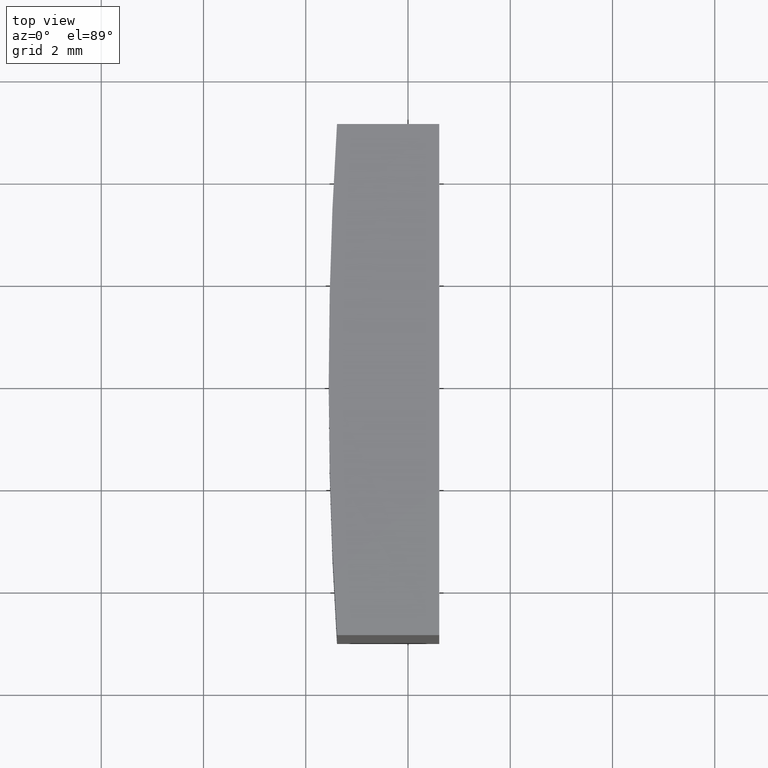
[diagram: clean part render]
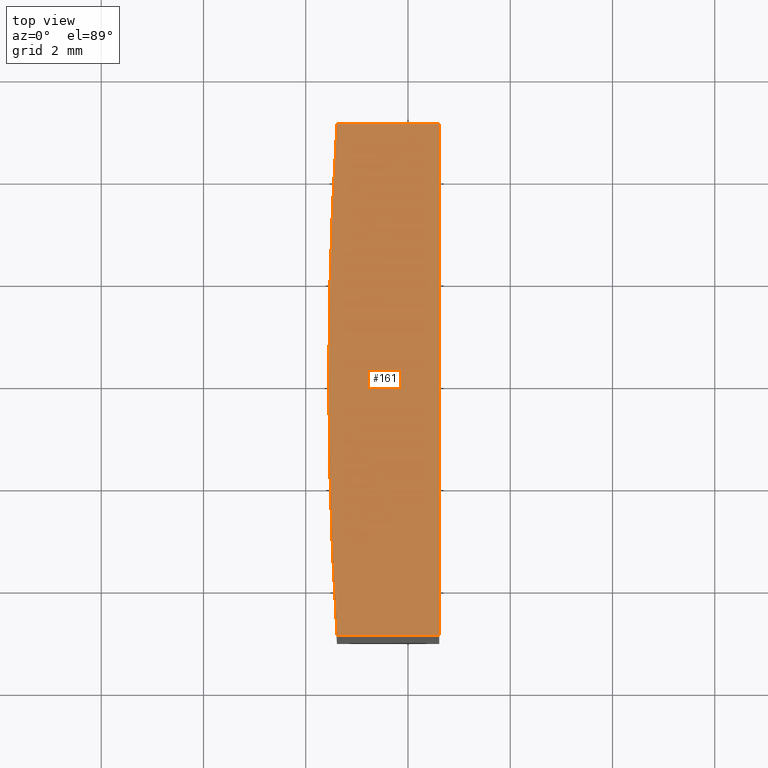
[diagram: same view with one face highlighted and labeled with its STEP entity id]
A machine part, top view. The second image highlights one B-rep face of the part: STEP entity #161.
In plain terms, the highlighted planar face has unit normal (0, 0, 1).
Its self-contained STEP definition (entity closure, byte-faithful):
#2 = CARTESIAN_POINT ( 'NONE',  ( -77.38864580802534476, 4.999999999999997335, 10.00000000000000000 ) ) ;
#5 = VECTOR ( 'NONE', #143, 1000.000000000000000 ) ;
#12 = LINE ( 'NONE', #97, #5 ) ;
#13 = ORIENTED_EDGE ( 'NONE', *, *, #72, .T. ) ;
#17 = ORIENTED_EDGE ( 'NONE', *, *, #231, .T. ) ;
#18 = VERTEX_POINT ( 'NONE', #2 ) ;
#20 = VERTEX_POINT ( 'NONE', #47 ) ;
#24 = VECTOR ( 'NONE', #152, 1000.000000000000000 ) ;
#25 = CARTESIAN_POINT ( 'NONE',  ( 0.000000000000000000, 0.000000000000000000, 10.00000000000000000 ) ) ;
#28 = CARTESIAN_POINT ( 'NONE',  ( -75.38864580802534476, 5.000000000000000888, 10.00000000000000000 ) ) ;
#39 = VERTEX_POINT ( 'NONE', #28 ) ;
#47 = CARTESIAN_POINT ( 'NONE',  ( -75.38864580802534476, -5.000000000000000888, 10.00000000000000000 ) ) ;
#62 = DIRECTION ( 'NONE',  ( 0.000000000000000000, 0.000000000000000000, 1.000000000000000000 ) ) ;
#66 = CARTESIAN_POINT ( 'NONE',  ( -77.54999999999999716, 0.000000000000000000, 10.00000000000000000 ) ) ;
#72 = EDGE_CURVE ( 'NONE', #39, #18, #273, .T. ) ;
#77 = EDGE_CURVE ( 'NONE', #264, #20, #209, .T. ) ;
#81 = EDGE_LOOP ( 'NONE', ( #17, #169, #145, #224, #13 ) ) ;
#87 = VECTOR ( 'NONE', #205, 1000.000000000000000 ) ;
#97 = CARTESIAN_POINT ( 'NONE',  ( -75.38864580802534476, 5.000000000000000888, 10.00000000000000000 ) ) ;
#103 = CIRCLE ( 'NONE', #187, 77.54999999999999716 ) ;
#108 = FACE_OUTER_BOUND ( 'NONE', #81, .T. ) ;
#127 = CIRCLE ( 'NONE', #166, 77.54999999999999716 ) ;
#131 = CARTESIAN_POINT ( 'NONE',  ( 0.000000000000000000, 0.000000000000000000, 10.00000000000000000 ) ) ;
#134 = EDGE_CURVE ( 'NONE', #189, #264, #127, .T. ) ;
#135 = CARTESIAN_POINT ( 'NONE',  ( -77.38864580802534476, 4.999999999999997335, 10.00000000000000000 ) ) ;
#143 = DIRECTION ( 'NONE',  ( -0.000000000000000000, 1.000000000000000000, -0.000000000000000000 ) ) ;
#145 = ORIENTED_EDGE ( 'NONE', *, *, #77, .T. ) ;
#146 = AXIS2_PLACEMENT_3D ( 'NONE', #25, #62, #256 ) ;
#152 = DIRECTION ( 'NONE',  ( -1.000000000000000000, -1.734723475976805517E-15, -0.000000000000000000 ) ) ;
#158 = CARTESIAN_POINT ( 'NONE',  ( -77.38864580802534476, -4.999999999999997335, 10.00000000000000000 ) ) ;
#161 = ADVANCED_FACE ( 'NONE', ( #108 ), #173, .T. ) ;
#166 = AXIS2_PLACEMENT_3D ( 'NONE', #131, #177, #195 ) ;
#169 = ORIENTED_EDGE ( 'NONE', *, *, #134, .T. ) ;
#173 = PLANE ( 'NONE',  #146 ) ;
#177 = DIRECTION ( 'NONE',  ( 0.000000000000000000, 0.000000000000000000, 1.000000000000000000 ) ) ;
#183 = DIRECTION ( 'NONE',  ( 0.000000000000000000, 0.000000000000000000, 1.000000000000000000 ) ) ;
#187 = AXIS2_PLACEMENT_3D ( 'NONE', #213, #183, #241 ) ;
#189 = VERTEX_POINT ( 'NONE', #66 ) ;
#194 = CARTESIAN_POINT ( 'NONE',  ( -77.38864580802534476, -4.999999999999997335, 10.00000000000000000 ) ) ;
#195 = DIRECTION ( 'NONE',  ( 1.000000000000000000, 0.000000000000000000, 0.000000000000000000 ) ) ;
#204 = EDGE_CURVE ( 'NONE', #20, #39, #12, .T. ) ;
#205 = DIRECTION ( 'NONE',  ( 1.000000000000000000, -1.734723475976805517E-15, 0.000000000000000000 ) ) ;
#209 = LINE ( 'NONE', #194, #87 ) ;
#213 = CARTESIAN_POINT ( 'NONE',  ( 0.000000000000000000, 0.000000000000000000, 10.00000000000000000 ) ) ;
#224 = ORIENTED_EDGE ( 'NONE', *, *, #204, .T. ) ;
#231 = EDGE_CURVE ( 'NONE', #18, #189, #103, .T. ) ;
#241 = DIRECTION ( 'NONE',  ( 1.000000000000000000, 0.000000000000000000, 0.000000000000000000 ) ) ;
#256 = DIRECTION ( 'NONE',  ( 1.000000000000000000, 0.000000000000000000, -0.000000000000000000 ) ) ;
#264 = VERTEX_POINT ( 'NONE', #158 ) ;
#273 = LINE ( 'NONE', #135, #24 ) ;